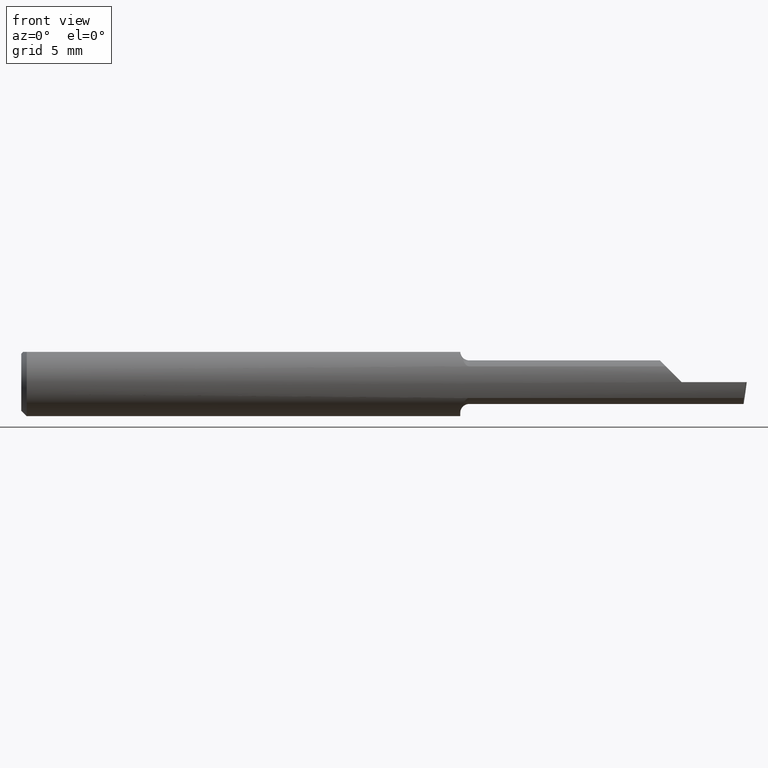
[diagram: clean part render]
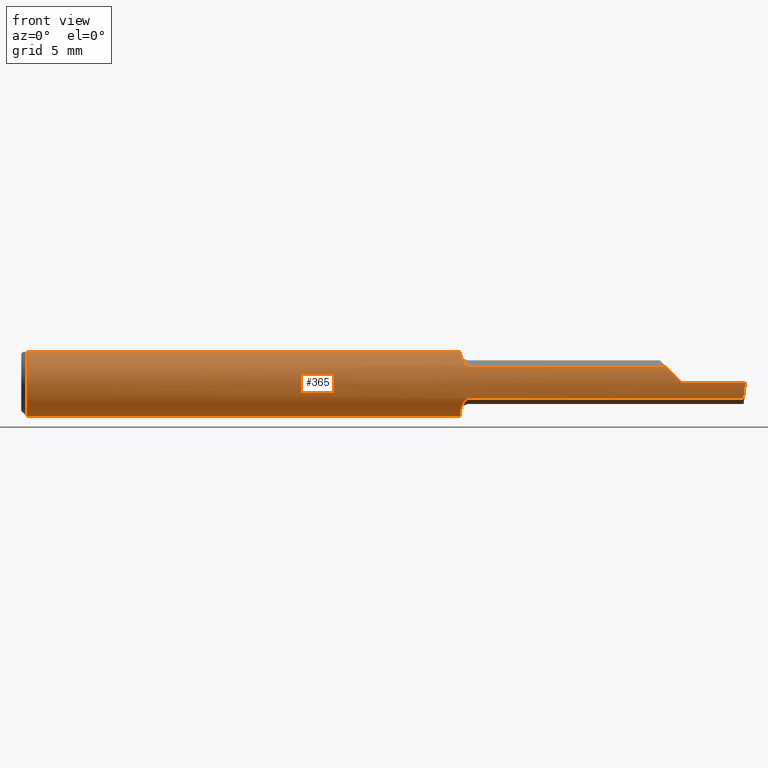
[diagram: same view with one face highlighted and labeled with its STEP entity id]
A machine part, front view. The second image highlights one B-rep face of the part: STEP entity #365.
In plain terms, the highlighted cylindrical surface (edge-blend (fillet) strip) has radius 2.3774 mm, axis along (-1, -0, -0).
Its self-contained STEP definition (entity closure, byte-faithful):
#2 = DIRECTION ( 'NONE',  ( 1.000000000000000000, -0.000000000000000000, -0.000000000000000000 ) ) ;
#8 = CARTESIAN_POINT ( 'NONE',  ( 1.820000000000000062, -0.09359807690332104524, 0.0005999999999997234759 ) ) ;
#9 =( BOUNDED_CURVE ( )  B_SPLINE_CURVE ( 3, ( #852, #1141, #408, #669 ),
 .UNSPECIFIED., .F., .T. ) 
 B_SPLINE_CURVE_WITH_KNOTS ( ( 4, 4 ),
 ( 0.8747232269835559793, 1.359145557743775212 ),
 .UNSPECIFIED. ) 
 CURVE ( )  GEOMETRIC_REPRESENTATION_ITEM ( )  RATIONAL_B_SPLINE_CURVE ( ( 1.000000000000000000, 0.9805400006031641524, 0.9805400006031641524, 1.000000000000000000 ) ) 
 REPRESENTATION_ITEM ( '' )  );
#23 = B_SPLINE_CURVE_WITH_KNOTS ( 'NONE', 3,
 ( #53, #1161, #154, #532, #445, #1064, #703, #1069, #1171, #514, #708, #510 ),
 .UNSPECIFIED., .F., .F.,
 ( 4, 2, 2, 2, 2, 4 ),
 ( 6.511945750756386795E-05, 0.0004901812236745809338, 0.0009152429898415979318, 0.001340304756008614930, 0.001552835639092120827, 0.001765366522175626507 ),
 .UNSPECIFIED. ) ;
#32 = CARTESIAN_POINT ( 'NONE',  ( 1.209999999999999964, -0.03926105769230769926, -0.08496781360539583383 ) ) ;
#34 = VECTOR ( 'NONE', #1073, 39.37007874015748143 ) ;
#49 =( BOUNDED_CURVE ( )  B_SPLINE_CURVE ( 3, ( #679, #582, #772, #147 ),
 .UNSPECIFIED., .F., .T. ) 
 B_SPLINE_CURVE_WITH_KNOTS ( ( 4, 4 ),
 ( 4.718799280696809539, 5.196811311144909240 ),
 .UNSPECIFIED. ) 
 CURVE ( )  GEOMETRIC_REPRESENTATION_ITEM ( )  RATIONAL_B_SPLINE_CURVE ( ( 1.000000000000000000, 0.9810491785075265980, 0.9810491785075265980, 1.000000000000000000 ) ) 
 REPRESENTATION_ITEM ( '' )  );
#53 = CARTESIAN_POINT ( 'NONE',  ( 1.210026580150250775, -0.04160000000000011605, -0.08384748058230487300 ) ) ;
#55 = LINE ( 'NONE', #779, #188 ) ;
#61 = B_SPLINE_CURVE_WITH_KNOTS ( 'NONE', 3,
 ( #1010, #559, #982, #1072 ),
 .UNSPECIFIED., .F., .F.,
 ( 4, 4 ),
 ( 0.000000000000000000, 6.511945750756386795E-05 ),
 .UNSPECIFIED. ) ;
#62 = AXIS2_PLACEMENT_3D ( 'NONE', #993, #902, #95 ) ;
#63 = ORIENTED_EDGE ( 'NONE', *, *, #552, .T. ) ;
#68 = DIRECTION ( 'NONE',  ( 0.000000000000000000, 0.000000000000000000, 1.000000000000000000 ) ) ;
#82 = EDGE_CURVE ( 'NONE', #439, #894, #438, .T. ) ;
#88 = CARTESIAN_POINT ( 'NONE',  ( 1.213736053593591713, -0.06460630286910788722, 0.06793434242190560246 ) ) ;
#90 = LINE ( 'NONE', #361, #405 ) ;
#92 = EDGE_CURVE ( 'NONE', #609, #1024, #55, .T. ) ;
#95 = DIRECTION ( 'NONE',  ( 0.000000000000000000, 0.000000000000000000, -1.000000000000000000 ) ) ;
#109 = CARTESIAN_POINT ( 'NONE',  ( 1.996359204888788375, -0.09360000000000003040, -1.280553747030123384E-17 ) ) ;
#118 = CIRCLE ( 'NONE', #144, 0.09360000000000001652 ) ;
#144 = AXIS2_PLACEMENT_3D ( 'NONE', #815, #2, #271 ) ;
#147 = CARTESIAN_POINT ( 'NONE',  ( 1.777010739067528267, -0.08283076923076923559, 0.04358926093247115358 ) ) ;
#154 = CARTESIAN_POINT ( 'NONE',  ( 1.210623617236403549, -0.05137681723376862075, -0.07843456804290672990 ) ) ;
#165 = DIRECTION ( 'NONE',  ( -1.000000000000000000, -0.000000000000000000, -0.000000000000000000 ) ) ;
#172 = ORIENTED_EDGE ( 'NONE', *, *, #1086, .T. ) ;
#188 = VECTOR ( 'NONE', #545, 39.37007874015748143 ) ;
#195 = CARTESIAN_POINT ( 'NONE',  ( 0.01499999999999997689, 0.000000000000000000, 0.000000000000000000 ) ) ;
#221 = CARTESIAN_POINT ( 'NONE',  ( 1.209999999999999964, 0.04209513035969836975, 0.08360000000000000764 ) ) ;
#239 = VECTOR ( 'NONE', #554, 39.37007874015748143 ) ;
#253 = CARTESIAN_POINT ( 'NONE',  ( 0.01499999999999997689, 0.04209513035969836975, 0.08360000000000000764 ) ) ;
#254 = ORIENTED_EDGE ( 'NONE', *, *, #1175, .F. ) ;
#271 = DIRECTION ( 'NONE',  ( 0.000000000000000000, 0.000000000000000000, -1.000000000000000000 ) ) ;
#274 = CARTESIAN_POINT ( 'NONE',  ( 1.229579912137085618, -0.08211261999334851236, 0.04496789056716104377 ) ) ;
#310 = EDGE_CURVE ( 'NONE', #673, #741, #61, .T. ) ;
#332 = EDGE_CURVE ( 'NONE', #614, #695, #913, .T. ) ;
#333 = CARTESIAN_POINT ( 'NONE',  ( 1.777010739067528267, -0.08283076923076923559, 0.04358926093247115358 ) ) ;
#337 = ORIENTED_EDGE ( 'NONE', *, *, #868, .T. ) ;
#343 = CARTESIAN_POINT ( 'NONE',  ( 1.210039148586933289, -0.04209513035969836975, 0.08360000000000000764 ) ) ;
#356 = CARTESIAN_POINT ( 'NONE',  ( 0.01499999999999997689, 0.000000000000000000, -0.09360000000000001652 ) ) ;
#361 = CARTESIAN_POINT ( 'NONE',  ( 1.527500000000000080, -0.08283076923076923559, -0.04358926093247113970 ) ) ;
#365 = ADVANCED_FACE ( 'NONE', ( #976 ), #705, .T. ) ;
#379 = ORIENTED_EDGE ( 'NONE', *, *, #82, .T. ) ;
#405 = VECTOR ( 'NONE', #731, 39.37007874015748143 ) ;
#408 = CARTESIAN_POINT ( 'NONE',  ( 1.994485063052651386, -0.09359999999999997489, -0.01526366036866348523 ) ) ;
#412 = B_SPLINE_CURVE_WITH_KNOTS ( 'NONE', 3,
 ( #743, #1179, #274, #1116, #627, #540, #897, #88, #452, #807, #634, #811 ),
 .UNSPECIFIED., .F., .F.,
 ( 4, 2, 2, 2, 2, 4 ),
 ( 0.000000000000000000, 0.0002131951421325466525, 0.0004263902842650933050, 0.0008527805685301866100, 0.001279170852795279969, 0.001705561137060373220 ),
 .UNSPECIFIED. ) ;
#413 = VERTEX_POINT ( 'NONE', #253 ) ;
#438 = LINE ( 'NONE', #706, #34 ) ;
#439 = VERTEX_POINT ( 'NONE', #343 ) ;
#445 = CARTESIAN_POINT ( 'NONE',  ( 1.213661553799953774, -0.06439886202495091749, -0.06813094799378989486 ) ) ;
#448 = ORIENTED_EDGE ( 'NONE', *, *, #310, .T. ) ;
#452 = CARTESIAN_POINT ( 'NONE',  ( 1.212477289815177439, -0.06060982146914534185, 0.07153573124103555780 ) ) ;
#459 = LINE ( 'NONE', #716, #239 ) ;
#481 = LINE ( 'NONE', #753, #929 ) ;
#487 = DIRECTION ( 'NONE',  ( 1.000000000000000000, 0.000000000000000000, 0.000000000000000000 ) ) ;
#500 = CARTESIAN_POINT ( 'NONE',  ( 1.234999999999999876, -0.08283076923076923559, -0.04358926093247113970 ) ) ;
#510 = CARTESIAN_POINT ( 'NONE',  ( 1.234999999999999876, -0.08283076923076923559, -0.04358926093247113970 ) ) ;
#514 = CARTESIAN_POINT ( 'NONE',  ( 1.229515975024028096, -0.08209254696281828578, -0.04500532860642073724 ) ) ;
#524 = DIRECTION ( 'NONE',  ( 0.000000000000000000, 0.000000000000000000, -1.000000000000000000 ) ) ;
#532 = CARTESIAN_POINT ( 'NONE',  ( 1.212377486072240718, -0.06025764937183671066, -0.07183713876074278304 ) ) ;
#540 = CARTESIAN_POINT ( 'NONE',  ( 1.219365580361787105, -0.07505113405137681104, 0.05613242093613884931 ) ) ;
#545 = DIRECTION ( 'NONE',  ( 1.000000000000000000, 0.000000000000000000, 0.000000000000000000 ) ) ;
#547 = DIRECTION ( 'NONE',  ( 0.000000000000000000, 0.000000000000000000, -1.000000000000000000 ) ) ;
#552 = EDGE_CURVE ( 'NONE', #615, #413, #118, .T. ) ;
#554 = DIRECTION ( 'NONE',  ( -1.000000000000000000, -0.000000000000000000, -0.000000000000000000 ) ) ;
#559 = CARTESIAN_POINT ( 'NONE',  ( 1.209999999999999964, -0.04004803488789287352, -0.08460417523732044476 ) ) ;
#582 = CARTESIAN_POINT ( 'NONE',  ( 1.804942563038452352, -0.09350155288834309519, 0.01565743696154713732 ) ) ;
#592 = ORIENTED_EDGE ( 'NONE', *, *, #670, .T. ) ;
#609 = VERTEX_POINT ( 'NONE', #912 ) ;
#611 = CARTESIAN_POINT ( 'NONE',  ( 1.991291236644940232, -0.08283076923076923559, -0.04358926093247112582 ) ) ;
#612 = CARTESIAN_POINT ( 'NONE',  ( 1.820000000000000062, 0.000000000000000000, 0.000000000000000000 ) ) ;
#614 = VERTEX_POINT ( 'NONE', #8 ) ;
#615 = VERTEX_POINT ( 'NONE', #356 ) ;
#625 = EDGE_CURVE ( 'NONE', #979, #758, #90, .T. ) ;
#627 = CARTESIAN_POINT ( 'NONE',  ( 1.223787800838770368, -0.07902379048613619728, 0.05021793392644407356 ) ) ;
#634 = CARTESIAN_POINT ( 'NONE',  ( 1.210178547211975486, -0.04709507836289903576, 0.08108237484465977141 ) ) ;
#669 = CARTESIAN_POINT ( 'NONE',  ( 1.996359204888788375, -0.09360000000000003040, -1.280553747030123384E-17 ) ) ;
#670 = EDGE_CURVE ( 'NONE', #413, #681, #481, .T. ) ;
#673 = VERTEX_POINT ( 'NONE', #32 ) ;
#679 = CARTESIAN_POINT ( 'NONE',  ( 1.820000000000000062, -0.09359807690332104524, 0.0005999999999997234759 ) ) ;
#681 = VERTEX_POINT ( 'NONE', #221 ) ;
#695 = VERTEX_POINT ( 'NONE', #1034 ) ;
#703 = CARTESIAN_POINT ( 'NONE',  ( 1.219245964766196844, -0.07491303877601934724, -0.05632320250699807823 ) ) ;
#705 = CYLINDRICAL_SURFACE ( 'NONE', #719, 0.09360000000000001652 ) ;
#706 = CARTESIAN_POINT ( 'NONE',  ( 2.000000000000000000, -0.04209513035969836975, 0.08360000000000000764 ) ) ;
#708 = CARTESIAN_POINT ( 'NONE',  ( 1.232125449801165784, -0.08283076923076918008, -0.04358926093247128541 ) ) ;
#716 = CARTESIAN_POINT ( 'NONE',  ( 2.000000000000000000, -0.09360000000000001652, -2.561107494060246767E-17 ) ) ;
#719 = AXIS2_PLACEMENT_3D ( 'NONE', #875, #165, #68 ) ;
#731 = DIRECTION ( 'NONE',  ( -1.000000000000000000, -0.000000000000000000, -0.000000000000000000 ) ) ;
#741 = VERTEX_POINT ( 'NONE', #1119 ) ;
#743 = CARTESIAN_POINT ( 'NONE',  ( 1.234999999999999876, -0.08283076923076923559, 0.04358926093247113970 ) ) ;
#753 = CARTESIAN_POINT ( 'NONE',  ( 2.000000000000000000, 0.04209513035969836975, 0.08360000000000000764 ) ) ;
#758 = VERTEX_POINT ( 'NONE', #500 ) ;
#760 = EDGE_CURVE ( 'NONE', #979, #1152, #9, .T. ) ;
#772 = CARTESIAN_POINT ( 'NONE',  ( 1.790336003083979000, -0.08984312002264578656, 0.03026399691602062181 ) ) ;
#779 = CARTESIAN_POINT ( 'NONE',  ( 1.527500000000000080, -0.08283076923076923559, 0.04358926093247113970 ) ) ;
#780 = AXIS2_PLACEMENT_3D ( 'NONE', #195, #909, #547 ) ;
#797 = DIRECTION ( 'NONE',  ( 1.000000000000000000, -0.000000000000000000, 0.000000000000000000 ) ) ;
#807 = CARTESIAN_POINT ( 'NONE',  ( 1.210691525765172472, -0.05185995085370527502, 0.07811182240968786439 ) ) ;
#810 = ORIENTED_EDGE ( 'NONE', *, *, #92, .F. ) ;
#811 = CARTESIAN_POINT ( 'NONE',  ( 1.210039148586933289, -0.04209513035969836975, 0.08360000000000000764 ) ) ;
#815 = CARTESIAN_POINT ( 'NONE',  ( 0.01499999999999997689, 0.000000000000000000, 0.000000000000000000 ) ) ;
#852 = CARTESIAN_POINT ( 'NONE',  ( 1.991291236644940232, -0.08283076923076923559, -0.04358926093247112582 ) ) ;
#860 = ORIENTED_EDGE ( 'NONE', *, *, #625, .F. ) ;
#868 = EDGE_CURVE ( 'NONE', #614, #1024, #49, .T. ) ;
#875 = CARTESIAN_POINT ( 'NONE',  ( 2.000000000000000000, 0.000000000000000000, 0.000000000000000000 ) ) ;
#894 = VERTEX_POINT ( 'NONE', #1053 ) ;
#897 = CARTESIAN_POINT ( 'NONE',  ( 1.217214892725881681, -0.07186207663014754221, 0.06020706929517850858 ) ) ;
#902 = DIRECTION ( 'NONE',  ( 1.000000000000000000, 0.000000000000000000, 0.000000000000000000 ) ) ;
#909 = DIRECTION ( 'NONE',  ( 1.000000000000000000, -0.000000000000000000, -0.000000000000000000 ) ) ;
#912 = CARTESIAN_POINT ( 'NONE',  ( 1.234999999999999876, -0.08283076923076923559, 0.04358926093247113970 ) ) ;
#913 = CIRCLE ( 'NONE', #941, 0.09360000000000001652 ) ;
#929 = VECTOR ( 'NONE', #487, 39.37007874015748143 ) ;
#941 = AXIS2_PLACEMENT_3D ( 'NONE', #612, #797, #524 ) ;
#976 = FACE_OUTER_BOUND ( 'NONE', #1068, .T. ) ;
#977 = ORIENTED_EDGE ( 'NONE', *, *, #1009, .T. ) ;
#978 = CIRCLE ( 'NONE', #780, 0.09360000000000001652 ) ;
#979 = VERTEX_POINT ( 'NONE', #611 ) ;
#982 = CARTESIAN_POINT ( 'NONE',  ( 1.210008895707773702, -0.04082764346252551468, -0.08423067673484112283 ) ) ;
#984 = ORIENTED_EDGE ( 'NONE', *, *, #1183, .T. ) ;
#993 = CARTESIAN_POINT ( 'NONE',  ( 1.209999999999999964, 0.000000000000000000, 0.000000000000000000 ) ) ;
#999 = CIRCLE ( 'NONE', #62, 0.09360000000000001652 ) ;
#1009 = EDGE_CURVE ( 'NONE', #741, #758, #23, .T. ) ;
#1010 = CARTESIAN_POINT ( 'NONE',  ( 1.209999999999999964, -0.03926105769230769926, -0.08496781360539583383 ) ) ;
#1011 = ORIENTED_EDGE ( 'NONE', *, *, #332, .F. ) ;
#1024 = VERTEX_POINT ( 'NONE', #333 ) ;
#1034 = CARTESIAN_POINT ( 'NONE',  ( 1.820000000000000062, -0.09360000000000001652, -2.561107494060246767E-17 ) ) ;
#1053 = CARTESIAN_POINT ( 'NONE',  ( 0.01499999999997129151, -0.04209513035984148444, 0.08360000000000000764 ) ) ;
#1064 = CARTESIAN_POINT ( 'NONE',  ( 1.217102498006617628, -0.07167697195384636899, -0.06042723885938103279 ) ) ;
#1068 = EDGE_LOOP ( 'NONE', ( #860, #1159, #1078, #1011, #337, #810, #984, #379, #172, #63, #592, #254, #448, #977 ) ) ;
#1069 = CARTESIAN_POINT ( 'NONE',  ( 1.223701538880791917, -0.07896087784546762522, -0.05031864862752453982 ) ) ;
#1072 = CARTESIAN_POINT ( 'NONE',  ( 1.210026580150250775, -0.04160000000000011605, -0.08384748058230487300 ) ) ;
#1073 = DIRECTION ( 'NONE',  ( -1.000000000000000000, -0.000000000000000000, -0.000000000000000000 ) ) ;
#1078 = ORIENTED_EDGE ( 'NONE', *, *, #1178, .T. ) ;
#1086 = EDGE_CURVE ( 'NONE', #894, #615, #978, .T. ) ;
#1116 = CARTESIAN_POINT ( 'NONE',  ( 1.225459910688778686, -0.08021373321158493941, 0.04827370452423249136 ) ) ;
#1119 = CARTESIAN_POINT ( 'NONE',  ( 1.210026580150250775, -0.04160000000000011605, -0.08384748058230487300 ) ) ;
#1141 = CARTESIAN_POINT ( 'NONE',  ( 1.992762213656492198, -0.08993901361746037271, -0.03008177450497541774 ) ) ;
#1152 = VERTEX_POINT ( 'NONE', #109 ) ;
#1159 = ORIENTED_EDGE ( 'NONE', *, *, #760, .T. ) ;
#1161 = CARTESIAN_POINT ( 'NONE',  ( 1.210142013856805976, -0.04664149215143562760, -0.08134620001855794036 ) ) ;
#1171 = CARTESIAN_POINT ( 'NONE',  ( 1.225391857495286230, -0.08017266721273613728, -0.04834262406831367487 ) ) ;
#1175 = EDGE_CURVE ( 'NONE', #673, #681, #999, .T. ) ;
#1178 = EDGE_CURVE ( 'NONE', #1152, #695, #459, .T. ) ;
#1179 = CARTESIAN_POINT ( 'NONE',  ( 1.232150197656745716, -0.08283076923076924947, 0.04358926093247113970 ) ) ;
#1183 = EDGE_CURVE ( 'NONE', #609, #439, #412, .T. ) ;